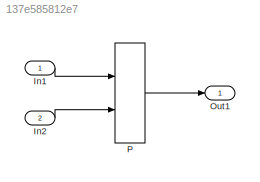
MODEL slx_137e585812e7
KIND model
CONFIG AbsTol = auto
CONFIG EnableMultiTasking = off
CONFIG FixedStep = auto
CONFIG MaxStep = auto
CONFIG MinStep = auto
CONFIG RelTol = 1e-3
CONFIG SampleTimeConstraint = Unconstrained
CONFIG Solver = FixedStepDiscrete
CONFIG SolverName = FixedStepDiscrete
CONFIG StartTime = 0.0
CONFIG StopTime = 10.0
BLOCK [Inport] In1
  IconDisplay = Port number
  OutMax = 2
BLOCK [Inport] In2
  IconDisplay = Port number
  OutMax = 5
  OutMin = 0
  Port = 2
BLOCK [Outport] Out1
  IconDisplay = Port number
BLOCK [Interpolation_n-D] P
  ExtrapMethod = Clip
  InputPortMap = u0,u1
  IntermediateResultsDataTypeStr = uint8
  InternalRulePriority = Speed
  NumSelectionDims = 2
  OutDataTypeStr = uint16
  Ports = [2, 1]
  RndMeth = Zero
  SaturateOnIntegerOverflow = on
  Table = [113.727031257405 15.3101080550766 119.87794580319 78.9653980506559 14.1082489519697;89.1528220262437 126.371227056903 99.9975703327628 120.740302288369 111.368366973433]
  ValidIndexMayReachLast = on
LINE In1:1 -> P:1
LINE In2:1 -> P:2
LINE P:1 -> Out1:1
